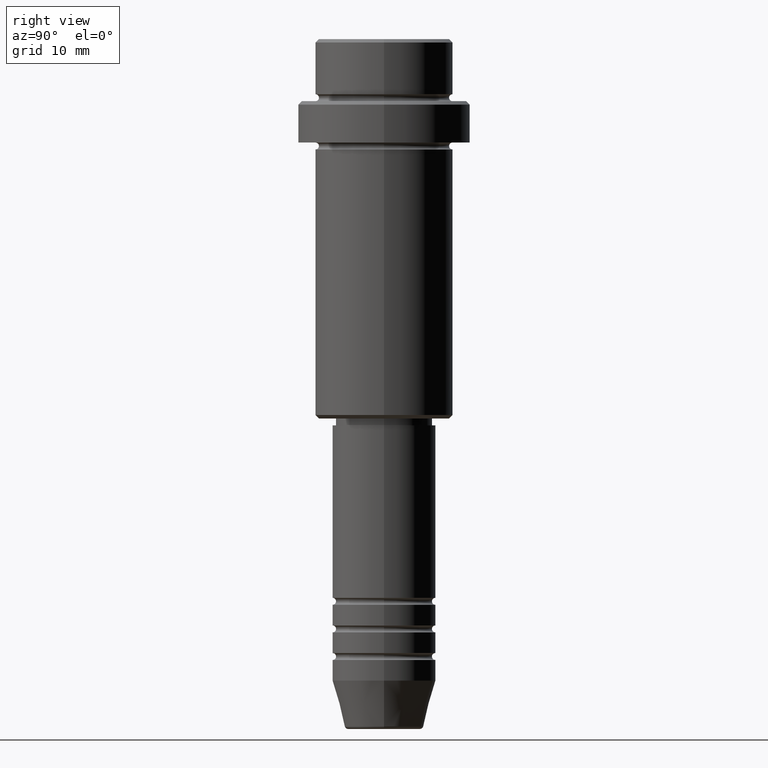
[diagram: clean part render]
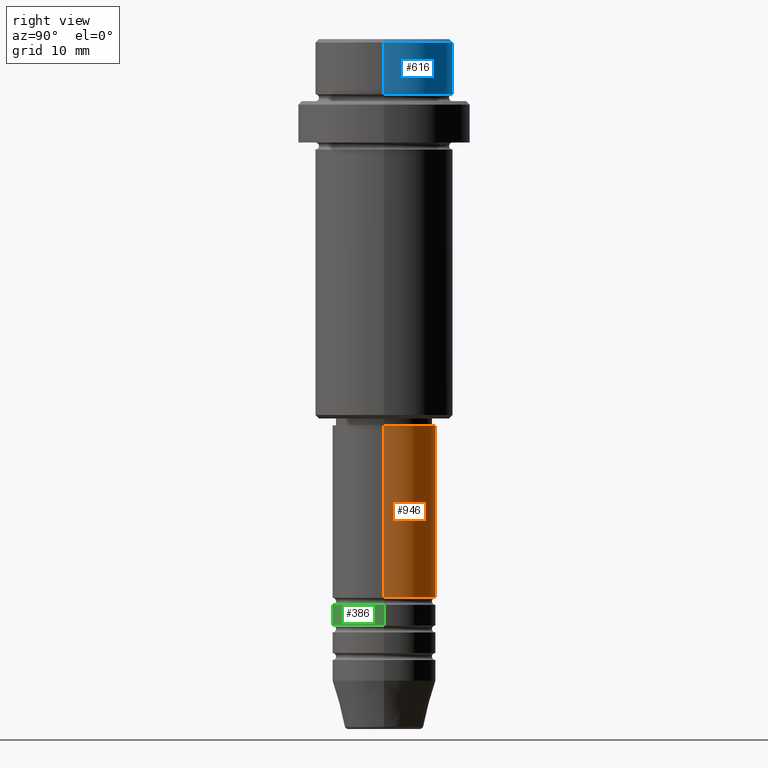
[diagram: same view with three faces highlighted in distinct colors, each labeled with its STEP entity id]
A machine part, right view with three faces highlighted in distinct colors.
Their STEP definitions:

[orange] entity #946 — the highlighted cylindrical surface (partial cylindrical patch) has radius 7.5 mm, axis along (-0, -0, 1).
#45 = CYLINDRICAL_SURFACE ( 'NONE', #1371, 7.500000000000000000 ) ;
#69 = CARTESIAN_POINT ( 'NONE',  ( 7.500000000000000000, 0.000000000000000000, 0.000000000000000000 ) ) ;
#73 = ORIENTED_EDGE ( 'NONE', *, *, #873, .T. ) ;
#145 = EDGE_CURVE ( 'NONE', #311, #691, #943, .T. ) ;
#187 = DIRECTION ( 'NONE',  ( -0.000000000000000000, -0.000000000000000000, 1.000000000000000000 ) ) ;
#226 = LINE ( 'NONE', #672, #1176 ) ;
#297 = VECTOR ( 'NONE', #729, 1000.000000000000000 ) ;
#311 = VERTEX_POINT ( 'NONE', #869 ) ;
#520 = EDGE_CURVE ( 'NONE', #937, #1117, #828, .T. ) ;
#543 = DIRECTION ( 'NONE',  ( 1.000000000000000000, 0.000000000000000000, 0.000000000000000000 ) ) ;
#592 = DIRECTION ( 'NONE',  ( -0.000000000000000000, -0.000000000000000000, 1.000000000000000000 ) ) ;
#644 = CARTESIAN_POINT ( 'NONE',  ( 0.000000000000000000, 0.000000000000000000, -55.99999999999997868 ) ) ;
#668 = AXIS2_PLACEMENT_3D ( 'NONE', #864, #187, #1200 ) ;
#672 = CARTESIAN_POINT ( 'NONE',  ( -7.500000000000000000, 9.184850993605147944E-16, 0.000000000000000000 ) ) ;
#691 = VERTEX_POINT ( 'NONE', #1096 ) ;
#722 = DIRECTION ( 'NONE',  ( 1.000000000000000000, 0.000000000000000000, 0.000000000000000000 ) ) ;
#729 = DIRECTION ( 'NONE',  ( -0.000000000000000000, -0.000000000000000000, 1.000000000000000000 ) ) ;
#734 = CARTESIAN_POINT ( 'NONE',  ( -7.500000000000000000, 9.184850993605147944E-16, -55.99999999999997868 ) ) ;
#796 = ORIENTED_EDGE ( 'NONE', *, *, #520, .F. ) ;
#803 = FACE_OUTER_BOUND ( 'NONE', #1024, .T. ) ;
#828 = CIRCLE ( 'NONE', #1130, 7.500000000000000000 ) ;
#864 = CARTESIAN_POINT ( 'NONE',  ( 0.000000000000000000, 0.000000000000000000, -80.99999999999987210 ) ) ;
#869 = CARTESIAN_POINT ( 'NONE',  ( 7.500000000000000000, 0.000000000000000000, -80.99999999999987210 ) ) ;
#873 = EDGE_CURVE ( 'NONE', #691, #1117, #226, .T. ) ;
#937 = VERTEX_POINT ( 'NONE', #1244 ) ;
#943 = CIRCLE ( 'NONE', #668, 7.500000000000000000 ) ;
#946 = ADVANCED_FACE ( 'NONE', ( #803 ), #45, .T. ) ;
#952 = LINE ( 'NONE', #69, #297 ) ;
#954 = EDGE_CURVE ( 'NONE', #311, #937, #952, .T. ) ;
#957 = DIRECTION ( 'NONE',  ( -0.000000000000000000, -0.000000000000000000, 1.000000000000000000 ) ) ;
#1024 = EDGE_LOOP ( 'NONE', ( #1212, #73, #796, #1097 ) ) ;
#1096 = CARTESIAN_POINT ( 'NONE',  ( -7.500000000000000000, 9.184850993605147944E-16, -80.99999999999987210 ) ) ;
#1097 = ORIENTED_EDGE ( 'NONE', *, *, #954, .F. ) ;
#1114 = DIRECTION ( 'NONE',  ( -0.000000000000000000, -0.000000000000000000, 1.000000000000000000 ) ) ;
#1117 = VERTEX_POINT ( 'NONE', #734 ) ;
#1130 = AXIS2_PLACEMENT_3D ( 'NONE', #644, #957, #543 ) ;
#1138 = CARTESIAN_POINT ( 'NONE',  ( 0.000000000000000000, 0.000000000000000000, 0.000000000000000000 ) ) ;
#1176 = VECTOR ( 'NONE', #1114, 1000.000000000000000 ) ;
#1200 = DIRECTION ( 'NONE',  ( 1.000000000000000000, 0.000000000000000000, 0.000000000000000000 ) ) ;
#1212 = ORIENTED_EDGE ( 'NONE', *, *, #145, .T. ) ;
#1244 = CARTESIAN_POINT ( 'NONE',  ( 7.500000000000000000, 0.000000000000000000, -55.99999999999997868 ) ) ;
#1371 = AXIS2_PLACEMENT_3D ( 'NONE', #1138, #592, #722 ) ;

[blue] entity #616 — the highlighted cylindrical surface (partial cylindrical patch) has radius 10 mm, axis along (-0, -0, 1).
#43 = LINE ( 'NONE', #495, #1366 ) ;
#58 = EDGE_CURVE ( 'NONE', #750, #1374, #43, .T. ) ;
#71 = VECTOR ( 'NONE', #498, 1000.000000000000000 ) ;
#219 = ORIENTED_EDGE ( 'NONE', *, *, #58, .F. ) ;
#378 = CARTESIAN_POINT ( 'NONE',  ( -9.999999999999998224, 1.224646799147353059E-15, -0.5000000000000108802 ) ) ;
#380 = CARTESIAN_POINT ( 'NONE',  ( -9.999999999999998224, 1.224646799147353059E-15, 0.000000000000000000 ) ) ;
#404 = CARTESIAN_POINT ( 'NONE',  ( 0.000000000000000000, 0.000000000000000000, -7.999999999999998224 ) ) ;
#415 = DIRECTION ( 'NONE',  ( 1.000000000000000000, 0.000000000000000000, 0.000000000000000000 ) ) ;
#495 = CARTESIAN_POINT ( 'NONE',  ( 9.999999999999998224, 0.000000000000000000, 0.000000000000000000 ) ) ;
#498 = DIRECTION ( 'NONE',  ( -0.000000000000000000, -0.000000000000000000, 1.000000000000000000 ) ) ;
#616 = ADVANCED_FACE ( 'NONE', ( #1370 ), #794, .T. ) ;
#626 = AXIS2_PLACEMENT_3D ( 'NONE', #404, #1383, #415 ) ;
#702 = ORIENTED_EDGE ( 'NONE', *, *, #1203, .T. ) ;
#732 = DIRECTION ( 'NONE',  ( 1.000000000000000000, 0.000000000000000000, 0.000000000000000000 ) ) ;
#741 = CIRCLE ( 'NONE', #626, 9.999999999999998224 ) ;
#750 = VERTEX_POINT ( 'NONE', #1077 ) ;
#794 = CYLINDRICAL_SURFACE ( 'NONE', #876, 9.999999999999998224 ) ;
#830 = EDGE_LOOP ( 'NONE', ( #702, #1164, #1327, #219 ) ) ;
#846 = DIRECTION ( 'NONE',  ( -0.000000000000000000, -0.000000000000000000, 1.000000000000000000 ) ) ;
#857 = CIRCLE ( 'NONE', #925, 9.999999999999998224 ) ;
#876 = AXIS2_PLACEMENT_3D ( 'NONE', #960, #846, #732 ) ;
#925 = AXIS2_PLACEMENT_3D ( 'NONE', #1293, #1099, #986 ) ;
#960 = CARTESIAN_POINT ( 'NONE',  ( 0.000000000000000000, 0.000000000000000000, 0.000000000000000000 ) ) ;
#986 = DIRECTION ( 'NONE',  ( 1.000000000000000000, 0.000000000000000000, 0.000000000000000000 ) ) ;
#1027 = EDGE_CURVE ( 'NONE', #1148, #1360, #1359, .T. ) ;
#1077 = CARTESIAN_POINT ( 'NONE',  ( 9.999999999999998224, 0.000000000000000000, -7.999999999999998224 ) ) ;
#1078 = EDGE_CURVE ( 'NONE', #1360, #1374, #857, .T. ) ;
#1099 = DIRECTION ( 'NONE',  ( 0.000000000000000000, 0.000000000000000000, -1.000000000000000000 ) ) ;
#1148 = VERTEX_POINT ( 'NONE', #1172 ) ;
#1149 = DIRECTION ( 'NONE',  ( -0.000000000000000000, -0.000000000000000000, 1.000000000000000000 ) ) ;
#1164 = ORIENTED_EDGE ( 'NONE', *, *, #1027, .T. ) ;
#1166 = CARTESIAN_POINT ( 'NONE',  ( 9.999999999999998224, 0.000000000000000000, -0.5000000000000108802 ) ) ;
#1172 = CARTESIAN_POINT ( 'NONE',  ( -9.999999999999998224, 1.224646799147353059E-15, -7.999999999999998224 ) ) ;
#1203 = EDGE_CURVE ( 'NONE', #750, #1148, #741, .T. ) ;
#1293 = CARTESIAN_POINT ( 'NONE',  ( 0.000000000000000000, 0.000000000000000000, -0.5000000000000108802 ) ) ;
#1327 = ORIENTED_EDGE ( 'NONE', *, *, #1078, .T. ) ;
#1359 = LINE ( 'NONE', #380, #71 ) ;
#1360 = VERTEX_POINT ( 'NONE', #378 ) ;
#1366 = VECTOR ( 'NONE', #1149, 1000.000000000000000 ) ;
#1370 = FACE_OUTER_BOUND ( 'NONE', #830, .T. ) ;
#1374 = VERTEX_POINT ( 'NONE', #1166 ) ;
#1383 = DIRECTION ( 'NONE',  ( -0.000000000000000000, -0.000000000000000000, 1.000000000000000000 ) ) ;

[green] entity #386 — the highlighted cylindrical surface (partial cylindrical patch) has radius 7.5 mm, axis along (-0, -0, 1).
#3 = VERTEX_POINT ( 'NONE', #29 ) ;
#29 = CARTESIAN_POINT ( 'NONE',  ( 7.500000000000000000, 0.000000000000000000, -81.99999999999987210 ) ) ;
#126 = ORIENTED_EDGE ( 'NONE', *, *, #1105, .F. ) ;
#215 = LINE ( 'NONE', #1406, #255 ) ;
#255 = VECTOR ( 'NONE', #304, 1000.000000000000000 ) ;
#299 = DIRECTION ( 'NONE',  ( 1.000000000000000000, 0.000000000000000000, 0.000000000000000000 ) ) ;
#304 = DIRECTION ( 'NONE',  ( -0.000000000000000000, -0.000000000000000000, 1.000000000000000000 ) ) ;
#319 = CIRCLE ( 'NONE', #761, 7.500000000000000000 ) ;
#347 = AXIS2_PLACEMENT_3D ( 'NONE', #1301, #548, #299 ) ;
#356 = EDGE_LOOP ( 'NONE', ( #126, #474, #1322, #1051 ) ) ;
#366 = CARTESIAN_POINT ( 'NONE',  ( 0.000000000000000000, 0.000000000000000000, -84.99999999999988631 ) ) ;
#384 = CARTESIAN_POINT ( 'NONE',  ( -7.500000000000000000, 9.184850993605147944E-16, -84.99999999999988631 ) ) ;
#386 = ADVANCED_FACE ( 'NONE', ( #1004 ), #769, .T. ) ;
#452 = DIRECTION ( 'NONE',  ( 1.000000000000000000, 0.000000000000000000, 0.000000000000000000 ) ) ;
#474 = ORIENTED_EDGE ( 'NONE', *, *, #859, .T. ) ;
#503 = CARTESIAN_POINT ( 'NONE',  ( 7.500000000000000000, 0.000000000000000000, 0.000000000000000000 ) ) ;
#548 = DIRECTION ( 'NONE',  ( -0.000000000000000000, -0.000000000000000000, 1.000000000000000000 ) ) ;
#555 = CIRCLE ( 'NONE', #347, 7.500000000000000000 ) ;
#622 = AXIS2_PLACEMENT_3D ( 'NONE', #1312, #1127, #1011 ) ;
#679 = VERTEX_POINT ( 'NONE', #979 ) ;
#725 = VERTEX_POINT ( 'NONE', #968 ) ;
#748 = EDGE_CURVE ( 'NONE', #679, #3, #555, .T. ) ;
#761 = AXIS2_PLACEMENT_3D ( 'NONE', #366, #1021, #452 ) ;
#769 = CYLINDRICAL_SURFACE ( 'NONE', #622, 7.500000000000000000 ) ;
#834 = DIRECTION ( 'NONE',  ( -0.000000000000000000, -0.000000000000000000, 1.000000000000000000 ) ) ;
#859 = EDGE_CURVE ( 'NONE', #1342, #725, #319, .T. ) ;
#968 = CARTESIAN_POINT ( 'NONE',  ( 7.500000000000000000, 0.000000000000000000, -84.99999999999988631 ) ) ;
#972 = VECTOR ( 'NONE', #834, 1000.000000000000000 ) ;
#979 = CARTESIAN_POINT ( 'NONE',  ( -7.500000000000000000, 9.184850993605147944E-16, -81.99999999999987210 ) ) ;
#983 = EDGE_CURVE ( 'NONE', #725, #3, #1162, .T. ) ;
#1004 = FACE_OUTER_BOUND ( 'NONE', #356, .T. ) ;
#1011 = DIRECTION ( 'NONE',  ( 1.000000000000000000, 0.000000000000000000, 0.000000000000000000 ) ) ;
#1021 = DIRECTION ( 'NONE',  ( -0.000000000000000000, -0.000000000000000000, 1.000000000000000000 ) ) ;
#1051 = ORIENTED_EDGE ( 'NONE', *, *, #748, .F. ) ;
#1105 = EDGE_CURVE ( 'NONE', #1342, #679, #215, .T. ) ;
#1127 = DIRECTION ( 'NONE',  ( -0.000000000000000000, -0.000000000000000000, 1.000000000000000000 ) ) ;
#1162 = LINE ( 'NONE', #503, #972 ) ;
#1301 = CARTESIAN_POINT ( 'NONE',  ( 0.000000000000000000, 0.000000000000000000, -81.99999999999987210 ) ) ;
#1312 = CARTESIAN_POINT ( 'NONE',  ( 0.000000000000000000, 0.000000000000000000, 0.000000000000000000 ) ) ;
#1322 = ORIENTED_EDGE ( 'NONE', *, *, #983, .T. ) ;
#1342 = VERTEX_POINT ( 'NONE', #384 ) ;
#1406 = CARTESIAN_POINT ( 'NONE',  ( -7.500000000000000000, 9.184850993605147944E-16, 0.000000000000000000 ) ) ;